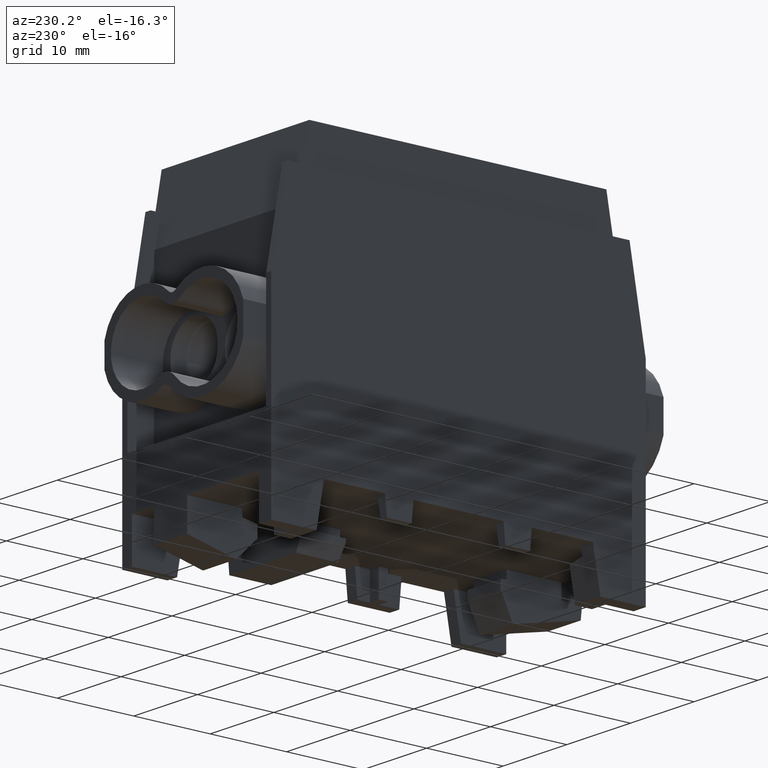
[diagram: clean part render]
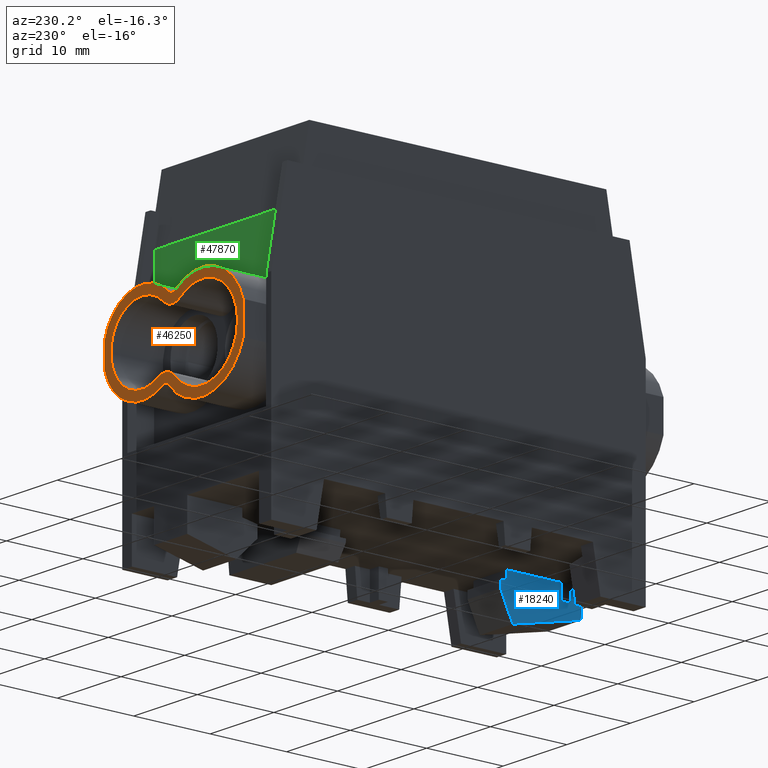
[diagram: same view with three faces highlighted in distinct colors, each labeled with its STEP entity id]
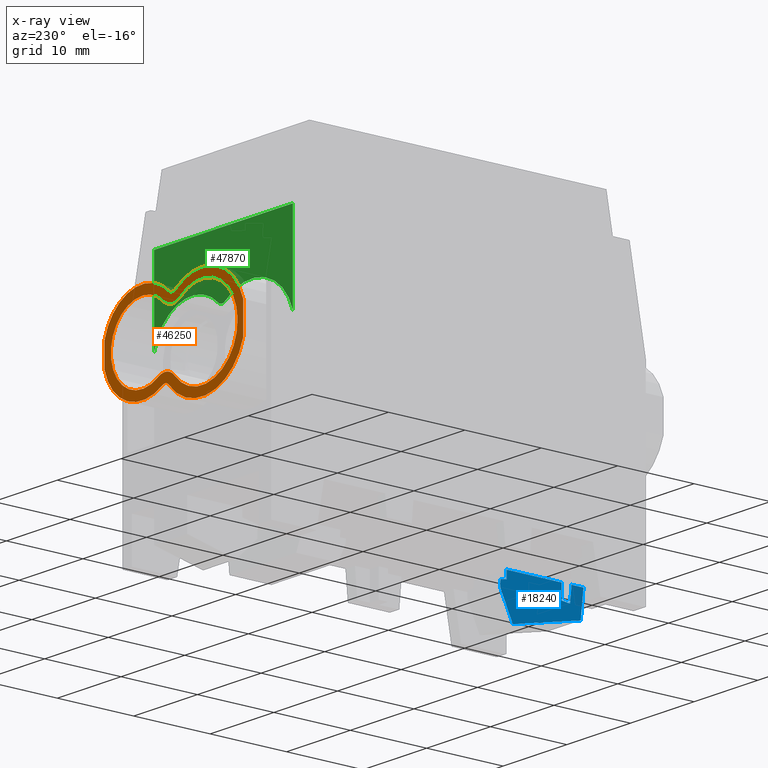
[diagram: x-ray of the same camera — body ghosted, the three highlighted faces saturated]
A machine part, auxiliary view with three faces highlighted in distinct colors.
The next image is the same camera in x-ray (body ghosted, the three faces saturated) — at least one of them is partly hidden behind the body in this view.
Their STEP definitions:

[orange] entity #46250 — the highlighted planar face has unit normal (0, 1, 0).
#20050=CARTESIAN_POINT('',(10.9,27.5,6.65080666151702));
#20060=VERTEX_POINT('',#20050);
#20090=CARTESIAN_POINT('',(5.00000000000001,27.5,8.19999999999999));
#20100=DIRECTION('',(0.,-1.,0.));
#20110=DIRECTION('',(0.,0.,-1.));
#20120=AXIS2_PLACEMENT_3D('',#20090,#20100,#20110);
#20130=CIRCLE('',#20120,6.1);
#20140=CARTESIAN_POINT('',(1.82960363499416,27.5,2.98860988902598));
#20150=VERTEX_POINT('',#20140);
#20160=EDGE_CURVE('',#20150,#20060,#20130,.T.);
#41100=CARTESIAN_POINT('',(5.00000000000001,27.5,8.19999999999999));
#41110=DIRECTION('',(0.,-1.,0.));
#41120=DIRECTION('',(0.,0.,-1.));
#41130=AXIS2_PLACEMENT_3D('',#41100,#41110,#41120);
#41140=CIRCLE('',#41130,6.1);
#41150=CARTESIAN_POINT('',(10.9,27.5,9.74919333848295));
#41160=VERTEX_POINT('',#41150);
#41170=CARTESIAN_POINT('',(0.804163378097343,27.5,12.6277483038561));
#41180=VERTEX_POINT('',#41170);
#41190=EDGE_CURVE('',#41160,#41180,#41140,.T.);
#44720=CARTESIAN_POINT('',(-4.39999999999999,27.5,7.19999999999999));
#44730=DIRECTION('',(0.,-1.,0.));
#44740=DIRECTION('',(0.,0.,-1.));
#44750=AXIS2_PLACEMENT_3D('',#44720,#44730,#44740);
#44760=CIRCLE('',#44750,6.8);
#44770=CARTESIAN_POINT('',(-10.9,27.5,5.20250156445618));
#44780=VERTEX_POINT('',#44770);
#44790=CARTESIAN_POINT('',(0.801833532224462,27.5,2.82039637603751));
#44800=VERTEX_POINT('',#44790);
#44810=EDGE_CURVE('',#44780,#44800,#44760,.T.);
#45080=CARTESIAN_POINT('',(10.9,27.5,29.745359338705));
#45090=DIRECTION('',(0.,0.,-1.));
#45100=VECTOR('',#45090,1.);
#45110=LINE('',#45080,#45100);
#45120=EDGE_CURVE('',#41160,#20060,#45110,.T.);
#45300=CARTESIAN_POINT('',(-10.9,27.5,9.1974984355438));
#45310=VERTEX_POINT('',#45300);
#45360=CARTESIAN_POINT('',(-10.9,27.5,29.745359338705));
#45370=DIRECTION('',(0.,0.,1.));
#45380=VECTOR('',#45370,1.);
#45390=LINE('',#45360,#45380);
#45400=EDGE_CURVE('',#44780,#45310,#45390,.T.);
#45520=CARTESIAN_POINT('',(5.00000000000001,27.5,8.19999999999999));
#45530=DIRECTION('',(0.,1.,0.));
#45540=DIRECTION('',(0.,0.,1.));
#45550=AXIS2_PLACEMENT_3D('',#45520,#45530,#45540);
#45560=PLANE('',#45550);
#45570=CARTESIAN_POINT('',(5.00000000000001,27.5,8.2));
#45580=DIRECTION('',(1.22108605138914E-16,1.,1.77619756370172E-16));
#45590=DIRECTION('',(-5.55111512312579E-17,-1.77619756370172E-16,1.));
#45600=AXIS2_PLACEMENT_3D('',#45570,#45580,#45590);
#45610=CIRCLE('',#45600,4.9);
#45620=CARTESIAN_POINT('',(1.62957386109459,27.5,11.7567158506385));
#45630=VERTEX_POINT('',#45620);
#45640=CARTESIAN_POINT('',(2.45328816581499,27.5,4.01380138626677));
#45650=VERTEX_POINT('',#45640);
#45660=EDGE_CURVE('',#45630,#45650,#45610,.T.);
#45670=ORIENTED_EDGE('',*,*,#45660,.F.);
#45680=CARTESIAN_POINT('',(1.41381394778028,27.5,2.30514889086546));
#45690=DIRECTION('',(1.22108605138914E-16,1.,1.77619756370172E-16));
#45700=DIRECTION('',(-5.55111512312579E-17,-1.77619756370172E-16,1.));
#45710=AXIS2_PLACEMENT_3D('',#45680,#45690,#45700);
#45720=CIRCLE('',#45710,2.);
#45730=CARTESIAN_POINT('',(-0.116137091109262,27.5,3.5932676037956));
#45740=VERTEX_POINT('',#45730);
#45750=EDGE_CURVE('',#45740,#45650,#45720,.T.);
#45760=ORIENTED_EDGE('',*,*,#45750,.T.);
#45770=CARTESIAN_POINT('',(-4.39999999999999,27.5,7.19999999999999));
#45780=DIRECTION('',(1.22108605138914E-16,1.,1.77619756370172E-16));
#45790=DIRECTION('',(-5.55111512312579E-17,-1.77619756370172E-16,1.));
#45800=AXIS2_PLACEMENT_3D('',#45770,#45780,#45790);
#45810=CIRCLE('',#45800,5.6);
#45820=CARTESIAN_POINT('',(-0.970818099014564,27.5,11.627269078106));
#45830=VERTEX_POINT('',#45820);
#45840=EDGE_CURVE('',#45740,#45830,#45810,.T.);
#45850=ORIENTED_EDGE('',*,*,#45840,.F.);
#45860=CARTESIAN_POINT('',(0.253889722765849,27.5,13.2084366060011));
#45870=DIRECTION('',(1.22108605138914E-16,1.,1.77619756370172E-16));
#45880=DIRECTION('',(-5.55111512312579E-17,-1.77619756370172E-16,1.));
#45890=AXIS2_PLACEMENT_3D('',#45860,#45870,#45880);
#45900=CIRCLE('',#45890,2.);
#45910=EDGE_CURVE('',#45630,#45830,#45900,.T.);
#45920=ORIENTED_EDGE('',*,*,#45910,.T.);
#45930=EDGE_LOOP('',(#45920,#45850,#45760,#45670));
#45940=FACE_BOUND('',#45930,.T.);
#45950=CARTESIAN_POINT('',(0.253889722765845,27.5,13.2084366060011));
#45960=DIRECTION('',(0.,-1.,0.));
#45970=DIRECTION('',(-1.,0.,0.));
#45980=AXIS2_PLACEMENT_3D('',#45950,#45960,#45970);
#45990=CIRCLE('',#45980,0.8);
#46000=CARTESIAN_POINT('',(-0.235993405946348,27.5,12.5759695948431));
#46010=VERTEX_POINT('',#46000);
#46020=EDGE_CURVE('',#46010,#41180,#45990,.T.);
#46030=ORIENTED_EDGE('',*,*,#46020,.T.);
#46040=CARTESIAN_POINT('',(-4.39999999999999,27.5,7.19999999999999));
#46050=DIRECTION('',(0.,-1.,0.));
#46060=DIRECTION('',(0.,0.,-1.));
#46070=AXIS2_PLACEMENT_3D('',#46040,#46050,#46060);
#46080=CIRCLE('',#46070,6.8);
#46090=EDGE_CURVE('',#46010,#45310,#46080,.T.);
#46100=ORIENTED_EDGE('',*,*,#46090,.F.);
#46110=ORIENTED_EDGE('',*,*,#45400,.T.);
#46120=ORIENTED_EDGE('',*,*,#44810,.F.);
#46130=CARTESIAN_POINT('',(1.41381394778028,27.5,2.30514889086545));
#46140=DIRECTION('',(0.,-1.,0.));
#46150=DIRECTION('',(-1.,0.,0.));
#46160=AXIS2_PLACEMENT_3D('',#46130,#46140,#46150);
#46170=CIRCLE('',#46160,0.8);
#46180=EDGE_CURVE('',#20150,#44800,#46170,.T.);
#46190=ORIENTED_EDGE('',*,*,#46180,.T.);
#46200=ORIENTED_EDGE('',*,*,#20160,.F.);
#46210=ORIENTED_EDGE('',*,*,#45120,.T.);
#46220=ORIENTED_EDGE('',*,*,#41190,.F.);
#46230=EDGE_LOOP('',(#46220,#46210,#46200,#46190,#46120,#46110,#46100,
#46030));
#46240=FACE_OUTER_BOUND('',#46230,.T.);
#46250=ADVANCED_FACE('',(#45940,#46240),#45560,.T.);

[blue] entity #18240 — the highlighted planar face has unit normal (-1, -0, 0).
#12550=CARTESIAN_POINT('',(1.50000000000001,-17.3,-8.));
#12560=DIRECTION('',(-1.22108605138914E-16,1.22108605138914E-16,-1.));
#12570=VECTOR('',#12560,1.);
#12580=LINE('',#12550,#12570);
#12590=CARTESIAN_POINT('',(1.50000000000001,-17.3,-8.));
#12600=VERTEX_POINT('',#12590);
#12610=CARTESIAN_POINT('',(1.50000000000001,-17.3,-9.));
#12620=VERTEX_POINT('',#12610);
#12630=EDGE_CURVE('',#12600,#12620,#12580,.T.);
#15160=CARTESIAN_POINT('',(1.50000000000001,-24.5,-9.88999999999998));
#15170=VERTEX_POINT('',#15160);
#15200=CARTESIAN_POINT('',(1.50000000000001,-24.5,0.));
#15210=DIRECTION('',(-1.22108605138914E-16,0.,-1.));
#15220=VECTOR('',#15210,1.);
#15230=LINE('',#15200,#15220);
#15240=CARTESIAN_POINT('',(1.5,-24.5,-8.));
#15250=VERTEX_POINT('',#15240);
#15260=EDGE_CURVE('',#15250,#15170,#15230,.T.);
#16500=CARTESIAN_POINT('',(1.50000000000001,-27.35,-8.));
#16510=VERTEX_POINT('',#16500);
#16890=CARTESIAN_POINT('',(1.50000000000001,-27.,-11.5));
#16900=VERTEX_POINT('',#16890);
#16930=CARTESIAN_POINT('',(1.50000000000001,-28.15,0.));
#16940=DIRECTION('',(1.21502603357886E-16,-0.099503719020998,
0.995037190209989));
#16950=VECTOR('',#16940,1.);
#16960=LINE('',#16930,#16950);
#16970=EDGE_CURVE('',#16900,#16510,#16960,.T.);
#17560=CARTESIAN_POINT('',(1.50000000000001,-22.325,-10.2883564172892));
#17570=DIRECTION('',(-1.,-2.46519032881566E-32,1.22108605138914E-16));
#17580=DIRECTION('',(9.74139183918533E-33,-1.,-1.22108605138914E-16));
#17590=AXIS2_PLACEMENT_3D('',#17560,#17570,#17580);
#17600=PLANE('',#17590);
#17610=ORIENTED_EDGE('',*,*,#15260,.F.);
#17620=CARTESIAN_POINT('',(1.50000000000001,7.105427357601E-15,
-7.43999999999999));
#17630=DIRECTION('',(-1.38777878078145E-17,-0.995037190209989,
-0.0995037190209983));
#17640=VECTOR('',#17630,1.);
#17650=LINE('',#17620,#17640);
#17660=CARTESIAN_POINT('',(1.50000000000001,-25.6,-9.99999999999998));
#17670=VERTEX_POINT('',#17660);
#17680=EDGE_CURVE('',#15170,#17670,#17650,.T.);
#17690=ORIENTED_EDGE('',*,*,#17680,.F.);
#17700=CARTESIAN_POINT('',(1.50000000000001,-26.6,0.));
#17710=DIRECTION('',(-1.2490009027033E-16,0.0995037190209983,
-0.995037190209989));
#17720=VECTOR('',#17710,1.);
#17730=LINE('',#17700,#17720);
#17740=CARTESIAN_POINT('',(1.5,-25.8,-8.));
#17750=VERTEX_POINT('',#17740);
#17760=EDGE_CURVE('',#17750,#17670,#17730,.T.);
#17770=ORIENTED_EDGE('',*,*,#17760,.T.);
#17780=CARTESIAN_POINT('',(1.50000000000001,7.105427357601E-15,-8.));
#17790=DIRECTION('',(-2.46519032881566E-32,1.,0.));
#17800=VECTOR('',#17790,1.);
#17810=LINE('',#17780,#17800);
#17820=EDGE_CURVE('',#16510,#17750,#17810,.T.);
#17830=ORIENTED_EDGE('',*,*,#17820,.T.);
#17840=ORIENTED_EDGE('',*,*,#16970,.T.);
#17850=CARTESIAN_POINT('',(1.50000000000001,-18.1056195521769,
-13.5484906061591));
#17860=DIRECTION('',(2.74057239501771E-17,-0.974488534871385,
0.224437286127374));
#17870=VECTOR('',#17860,1.);
#17880=LINE('',#17850,#17870);
#17890=CARTESIAN_POINT('',(1.50000000000001,-18.1056195521769,
-13.5484906061591));
#17900=VERTEX_POINT('',#17890);
#17910=EDGE_CURVE('',#17900,#16900,#17880,.T.);
#17920=ORIENTED_EDGE('',*,*,#17910,.T.);
#17930=CARTESIAN_POINT('',(1.50000000000001,-16.5,-10.1052283648104));
#17940=DIRECTION('',(-1.10667979701582E-16,-0.422618261740699,
-0.90630778703665));
#17950=VECTOR('',#17940,1.);
#17960=LINE('',#17930,#17950);
#17970=CARTESIAN_POINT('',(1.50000000000001,-16.5,-10.1052283648104));
#17980=VERTEX_POINT('',#17970);
#17990=EDGE_CURVE('',#17980,#17900,#17960,.T.);
#18000=ORIENTED_EDGE('',*,*,#17990,.T.);
#18010=CARTESIAN_POINT('',(1.50000000000001,-16.5,-9.14106158456677));
#18020=DIRECTION('',(-1.22108605138914E-16,1.22108605138914E-16,-1.));
#18030=VECTOR('',#18020,1.);
#18040=LINE('',#18010,#18030);
#18050=CARTESIAN_POINT('',(1.50000000000001,-16.5,-9.14106158456677));
#18060=VERTEX_POINT('',#18050);
#18070=EDGE_CURVE('',#18060,#17980,#18040,.T.);
#18080=ORIENTED_EDGE('',*,*,#18070,.T.);
#18090=CARTESIAN_POINT('',(1.50000000000001,-17.3,-9.));
#18100=DIRECTION('',(-2.1203936759823E-17,0.984807753012208,
-0.173648177666929));
#18110=VECTOR('',#18100,1.);
#18120=LINE('',#18090,#18110);
#18130=EDGE_CURVE('',#12620,#18060,#18120,.T.);
#18140=ORIENTED_EDGE('',*,*,#18130,.T.);
#18150=ORIENTED_EDGE('',*,*,#12630,.T.);
#18160=CARTESIAN_POINT('',(1.50000000000001,7.105427357601E-15,-8.));
#18170=DIRECTION('',(-2.46519032881566E-32,1.,0.));
#18180=VECTOR('',#18170,1.);
#18190=LINE('',#18160,#18180);
#18200=EDGE_CURVE('',#15250,#12600,#18190,.T.);
#18210=ORIENTED_EDGE('',*,*,#18200,.T.);
#18220=EDGE_LOOP('',(#18210,#18150,#18140,#18080,#18000,#17920,#17840,
#17830,#17770,#17690,#17610));
#18230=FACE_OUTER_BOUND('',#18220,.T.);
#18240=ADVANCED_FACE('',(#18230),#17600,.T.);

[green] entity #47870 — the highlighted planar face has unit normal (0, -1, 0).
#41310=CARTESIAN_POINT('',(10.9,21.,9.74919333848295));
#41320=VERTEX_POINT('',#41310);
#41350=CARTESIAN_POINT('',(5.00000000000001,21.,8.19999999999999));
#41360=DIRECTION('',(0.,-1.,0.));
#41370=DIRECTION('',(0.,0.,-1.));
#41380=AXIS2_PLACEMENT_3D('',#41350,#41360,#41370);
#41390=CIRCLE('',#41380,6.1);
#41400=CARTESIAN_POINT('',(0.804163378097343,21.,12.6277483038561));
#41410=VERTEX_POINT('',#41400);
#41420=EDGE_CURVE('',#41320,#41410,#41390,.T.);
#42590=CARTESIAN_POINT('',(-10.9,21.,20.4312329952889));
#42600=VERTEX_POINT('',#42590);
#42700=CARTESIAN_POINT('',(-10.9,21.,9.19749843554379));
#42710=VERTEX_POINT('',#42700);
#42740=CARTESIAN_POINT('',(-10.9,21.,0.));
#42750=DIRECTION('',(0.,0.,1.));
#42760=VECTOR('',#42750,1.);
#42770=LINE('',#42740,#42760);
#42780=EDGE_CURVE('',#42710,#42600,#42770,.T.);
#42900=CARTESIAN_POINT('',(10.9,21.,0.));
#42910=DIRECTION('',(0.,0.,-1.));
#42920=VECTOR('',#42910,1.);
#42930=LINE('',#42900,#42920);
#42940=CARTESIAN_POINT('',(10.9,21.,20.4312329952889));
#42950=VERTEX_POINT('',#42940);
#42960=EDGE_CURVE('',#42950,#41320,#42930,.T.);
#47390=CARTESIAN_POINT('',(-0.235993405946348,21.,12.5759695948431));
#47400=VERTEX_POINT('',#47390);
#47430=CARTESIAN_POINT('',(-4.39999999999999,21.,7.19999999999999));
#47440=DIRECTION('',(0.,-1.,0.));
#47450=DIRECTION('',(0.,0.,-1.));
#47460=AXIS2_PLACEMENT_3D('',#47430,#47440,#47450);
#47470=CIRCLE('',#47460,6.8);
#47480=EDGE_CURVE('',#47400,#42710,#47470,.T.);
#47630=CARTESIAN_POINT('',(11.6,21.,20.3));
#47640=DIRECTION('',(0.,-1.,0.));
#47650=DIRECTION('',(0.,0.,-1.));
#47660=AXIS2_PLACEMENT_3D('',#47630,#47640,#47650);
#47670=PLANE('',#47660);
#47680=CARTESIAN_POINT('',(0.253889722765845,21.,13.2084366060011));
#47690=DIRECTION('',(0.,-1.,0.));
#47700=DIRECTION('',(-1.,0.,0.));
#47710=AXIS2_PLACEMENT_3D('',#47680,#47690,#47700);
#47720=CIRCLE('',#47710,0.8);
#47730=EDGE_CURVE('',#47400,#41410,#47720,.T.);
#47740=ORIENTED_EDGE('',*,*,#47730,.F.);
#47750=ORIENTED_EDGE('',*,*,#41420,.T.);
#47760=ORIENTED_EDGE('',*,*,#42960,.T.);
#47770=CARTESIAN_POINT('',(5.32907051820075E-15,21.,20.4312329952889));
#47780=DIRECTION('',(1.,0.,0.));
#47790=VECTOR('',#47780,1.);
#47800=LINE('',#47770,#47790);
#47810=EDGE_CURVE('',#42600,#42950,#47800,.T.);
#47820=ORIENTED_EDGE('',*,*,#47810,.T.);
#47830=ORIENTED_EDGE('',*,*,#42780,.T.);
#47840=ORIENTED_EDGE('',*,*,#47480,.T.);
#47850=EDGE_LOOP('',(#47840,#47830,#47820,#47760,#47750,#47740));
#47860=FACE_OUTER_BOUND('',#47850,.T.);
#47870=ADVANCED_FACE('',(#47860),#47670,.F.);